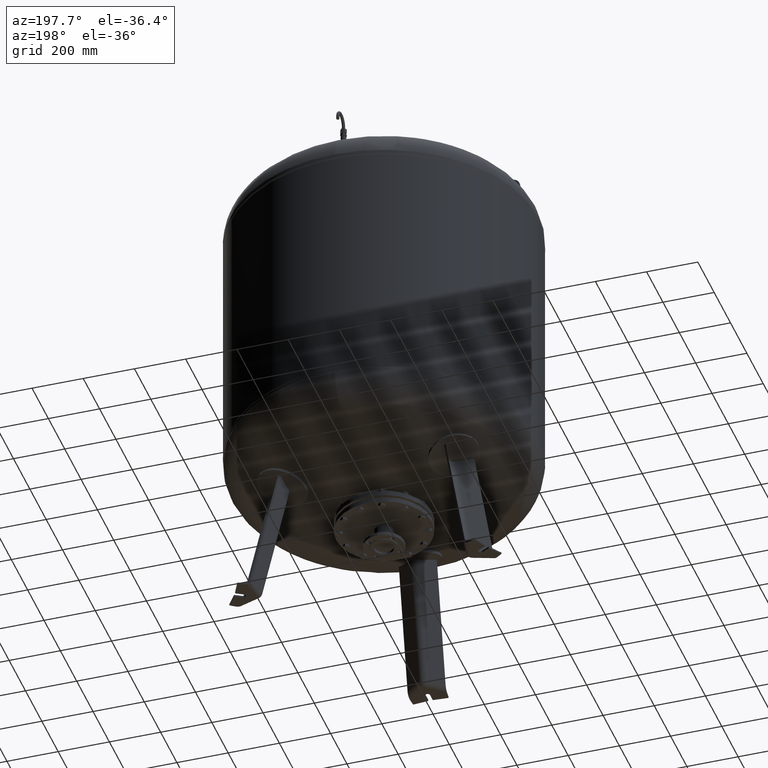
[diagram: clean part render]
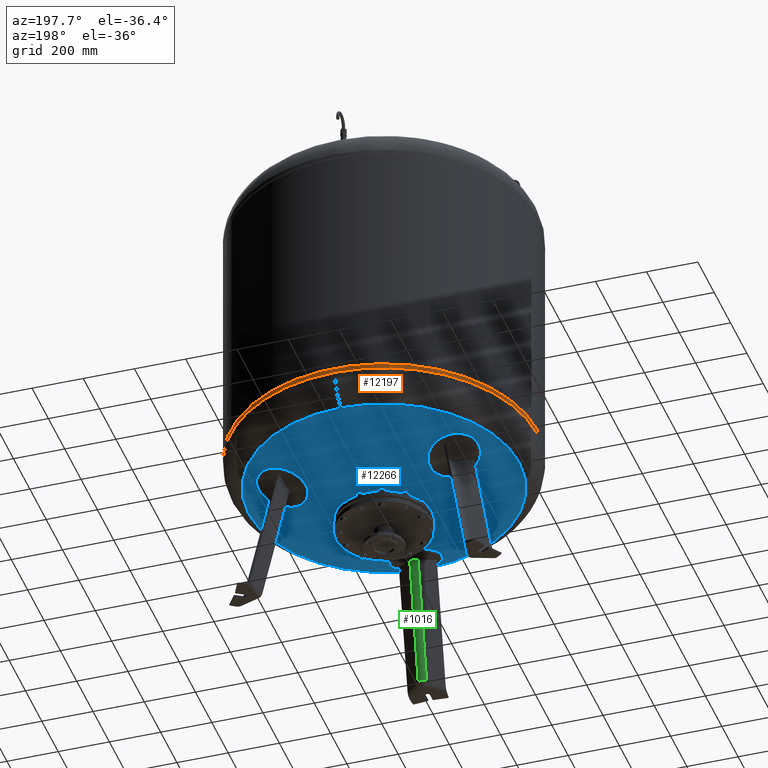
[diagram: same view with three faces highlighted in distinct colors, each labeled with its STEP entity id]
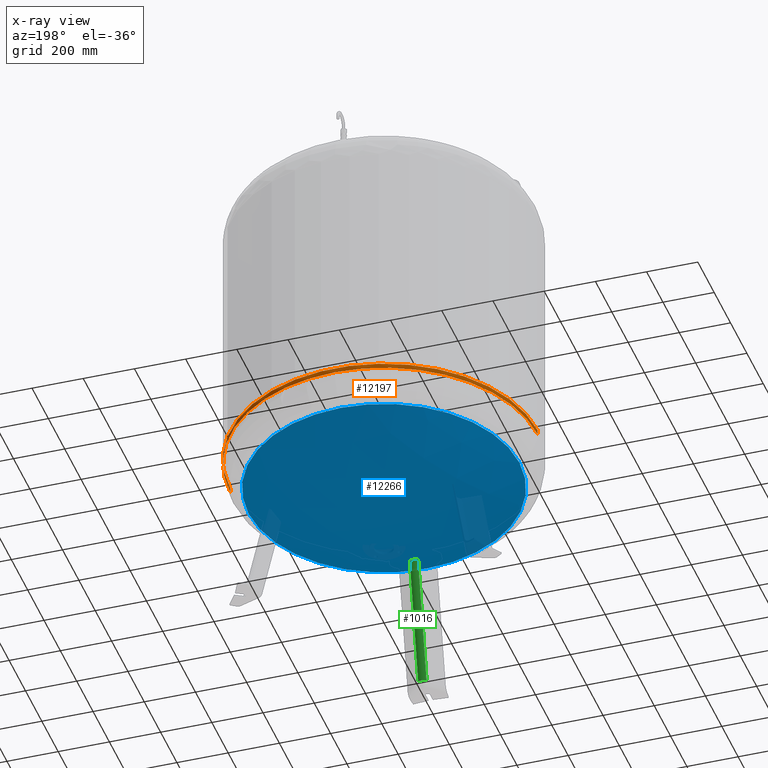
[diagram: x-ray of the same camera — body ghosted, the three highlighted faces saturated]
A machine part, auxiliary view with three faces highlighted in distinct colors.
The next image is the same camera in x-ray (body ghosted, the three faces saturated) — at least one of them is partly hidden behind the body in this view.
Their STEP definitions:

[orange] entity #12197 — the highlighted cylindrical surface (partial cylindrical patch) has radius 600 mm, axis along (-0, -0, 1).
#12147=CARTESIAN_POINT('',(-3.693994E-014,-4.510566E-014,705.543771283136150));
#12148=DIRECTION('',(-1.504413E-016,-1.836970E-016,1.0));
#12149=DIRECTION('',(-1.0,0.0,0.0));
#12150=AXIS2_PLACEMENT_3D('',#12147,#12148,#12149);
#12151=CYLINDRICAL_SURFACE('',#12150,599.999999999999890);
#12152=CARTESIAN_POINT('',(-600.000000000000110,-4.684274E-014,715.0));
#12153=VERTEX_POINT('',#12152);
#12154=CARTESIAN_POINT('',(-600.0,-4.336858E-014,696.087542566272190));
#12155=VERTEX_POINT('',#12154);
#12156=CARTESIAN_POINT('',(-600.000000000000110,-4.684274E-014,715.0));
#12157=DIRECTION('',(0.0,0.0,-1.0));
#12158=VECTOR('',#12157,18.912457433727809);
#12159=LINE('',#12156,#12158);
#12160=EDGE_CURVE('',#12153,#12155,#12159,.T.);
#12161=ORIENTED_EDGE('',*,*,#12160,.F.);
#12162=CARTESIAN_POINT('',(599.999999999999890,2.663364E-014,715.000000000000110));
#12163=VERTEX_POINT('',#12162);
#12164=CARTESIAN_POINT('',(-3.836254E-014,-4.684274E-014,715.0));
#12165=DIRECTION('',(0.0,0.0,1.0));
#12166=DIRECTION('',(-1.0,0.0,0.0));
#12167=AXIS2_PLACEMENT_3D('',#12164,#12165,#12166);
#12168=CIRCLE('',#12167,600.0);
#12169=EDGE_CURVE('',#12163,#12153,#12168,.T.);
#12170=ORIENTED_EDGE('',*,*,#12169,.F.);
#12171=CARTESIAN_POINT('',(599.999999999999890,3.010780E-014,696.087542566272300));
#12172=VERTEX_POINT('',#12171);
#12173=CARTESIAN_POINT('',(599.999999999999890,2.663364E-014,715.000000000000110));
#12174=DIRECTION('',(0.0,0.0,-1.0));
#12175=VECTOR('',#12174,18.912457433727809);
#12176=LINE('',#12173,#12175);
#12177=EDGE_CURVE('',#12163,#12172,#12176,.T.);
#12178=ORIENTED_EDGE('',*,*,#12177,.T.);
#12179=CARTESIAN_POINT('',(-1.445307E-013,600.0,696.087542566272420));
#12180=VERTEX_POINT('',#12179);
#12181=CARTESIAN_POINT('',(-3.551733E-014,-4.336858E-014,696.087542566272300));
#12182=DIRECTION('',(0.0,0.0,1.0));
#12183=DIRECTION('',(-1.0,0.0,0.0));
#12184=AXIS2_PLACEMENT_3D('',#12181,#12182,#12183);
#12185=CIRCLE('',#12184,600.0);
#12186=EDGE_CURVE('',#12172,#12180,#12185,.T.);
#12187=ORIENTED_EDGE('',*,*,#12186,.T.);
#12188=CARTESIAN_POINT('',(-3.551733E-014,-4.336858E-014,696.087542566272300));
#12189=DIRECTION('',(0.0,0.0,1.0));
#12190=DIRECTION('',(-1.0,0.0,0.0));
#12191=AXIS2_PLACEMENT_3D('',#12188,#12189,#12190);
#12192=CIRCLE('',#12191,600.0);
#12193=EDGE_CURVE('',#12180,#12155,#12192,.T.);
#12194=ORIENTED_EDGE('',*,*,#12193,.T.);
#12195=EDGE_LOOP('',(#12161,#12170,#12178,#12187,#12194));
#12196=FACE_OUTER_BOUND('',#12195,.T.);
#12197=ADVANCED_FACE('',(#12196),#12151,.T.);

[blue] entity #12266 — the highlighted spherical surface has radius 1207 mm.
#12205=CARTESIAN_POINT('',(-5.387807E-014,-528.621296296296240,581.915429516194880));
#12206=VERTEX_POINT('',#12205);
#12222=CARTESIAN_POINT('',(-1.186134E-013,528.621296296296240,581.915429516195100));
#12223=VERTEX_POINT('',#12222);
#12231=CARTESIAN_POINT('',(-528.621296296296240,-2.239550E-014,581.915429516194990));
#12232=VERTEX_POINT('',#12231);
#12233=CARTESIAN_POINT('',(-1.834112E-014,-2.239550E-014,581.915429516194990));
#12234=DIRECTION('',(0.0,0.0,1.0));
#12235=DIRECTION('',(-1.0,0.0,0.0));
#12236=AXIS2_PLACEMENT_3D('',#12233,#12234,#12235);
#12237=CIRCLE('',#12236,528.621296296296240);
#12238=EDGE_CURVE('',#12223,#12232,#12237,.T.);
#12240=CARTESIAN_POINT('',(-1.834112E-014,-2.239550E-014,581.915429516194990));
#12241=DIRECTION('',(0.0,0.0,1.0));
#12242=DIRECTION('',(-1.0,0.0,0.0));
#12243=AXIS2_PLACEMENT_3D('',#12240,#12241,#12242);
#12244=CIRCLE('',#12243,528.621296296296240);
#12245=EDGE_CURVE('',#12232,#12206,#12244,.T.);
#12250=CARTESIAN_POINT('',(-2.715353E-013,-2.217223E-013,1667.0));
#12251=DIRECTION('',(0.0,-1.0,0.0));
#12252=DIRECTION('',(1.0,0.0,0.0));
#12253=AXIS2_PLACEMENT_3D('',#12250,#12251,#12252);
#12254=SPHERICAL_SURFACE('',#12253,1207.000000000000200);
#12255=ORIENTED_EDGE('',*,*,#12245,.F.);
#12256=ORIENTED_EDGE('',*,*,#12238,.F.);
#12257=CARTESIAN_POINT('',(-1.834112E-014,-2.239550E-014,581.915429516194990));
#12258=DIRECTION('',(0.0,0.0,1.0));
#12259=DIRECTION('',(-1.0,0.0,0.0));
#12260=AXIS2_PLACEMENT_3D('',#12257,#12258,#12259);
#12261=CIRCLE('',#12260,528.621296296296240);
#12262=EDGE_CURVE('',#12206,#12223,#12261,.T.);
#12263=ORIENTED_EDGE('',*,*,#12262,.F.);
#12264=EDGE_LOOP('',(#12255,#12256,#12263));
#12265=FACE_OUTER_BOUND('',#12264,.T.);
#12266=ADVANCED_FACE('',(#12265),#12254,.T.);

[green] entity #1016 — the highlighted cylindrical surface (edge-blend (fillet) strip) has radius 25 mm, axis along (0, 0.2079, 0.9781).
#237=CARTESIAN_POINT('',(3.011497E-014,-463.694895977767430,19.802207729555999));
#238=VERTEX_POINT('',#237);
#248=CARTESIAN_POINT('',(16.136450826554551,-469.470961811045530,21.029948423057281));
#249=VERTEX_POINT('',#248);
#250=CARTESIAN_POINT('',(1.064933E-014,-488.148585996112560,24.999999999999993));
#251=DIRECTION('',(-1.655020E-016,-0.207911690817760,-0.978147600733806));
#252=DIRECTION('',(3.716286E-016,0.978147600733806,-0.207911690817760));
#253=AXIS2_PLACEMENT_3D('',#250,#251,#252);
#254=CIRCLE('',#253,24.999999999999996);
#255=EDGE_CURVE('',#238,#249,#254,.T.);
#332=CARTESIAN_POINT('',(-16.136450826554526,-469.470961811045530,21.029948423057292));
#333=VERTEX_POINT('',#332);
#380=CARTESIAN_POINT('',(1.064933E-014,-488.148585996112560,24.999999999999993));
#381=DIRECTION('',(-1.655020E-016,-0.207911690817760,-0.978147600733806));
#382=DIRECTION('',(3.716286E-016,0.978147600733806,-0.207911690817760));
#383=AXIS2_PLACEMENT_3D('',#380,#381,#382);
#384=CIRCLE('',#383,24.999999999999996);
#385=EDGE_CURVE('',#333,#238,#384,.T.);
#782=CARTESIAN_POINT('',(16.136450826554654,-366.399566169852280,505.942739782580020));
#783=VERTEX_POINT('',#782);
#793=CARTESIAN_POINT('',(-16.136450826554444,-366.398456764061390,505.947959126467590));
#794=VERTEX_POINT('',#793);
#795=CARTESIAN_POINT('',(-16.136450826554444,-366.398456764061390,505.947959126467590));
#796=CARTESIAN_POINT('',(-15.737400566579936,-366.076748518013970,505.839519935654040));
#797=CARTESIAN_POINT('',(-15.327147909001727,-365.766480344501820,505.734934896781850));
#798=CARTESIAN_POINT('',(-14.046721065585743,-364.859207342083210,505.429103824092690));
#799=CARTESIAN_POINT('',(-13.143904252568687,-364.301561156435750,505.241116411709530));
#800=CARTESIAN_POINT('',(-11.271425572263219,-363.302030248417340,504.904132145277800));
#801=CARTESIAN_POINT('',(-10.300484546888351,-362.859462575826110,504.754905007621570));
#802=CARTESIAN_POINT('',(-8.309953011693755,-362.097968578637620,504.498091049258280));
#803=CARTESIAN_POINT('',(-7.290360884908889,-361.779046057881940,504.390505482463710));
#804=CARTESIAN_POINT('',(-5.225144980184176,-361.269712235438310,504.218613051497190));
#805=CARTESIAN_POINT('',(-4.179354266446703,-361.079270589673680,504.154295924989920));
#806=CARTESIAN_POINT('',(-2.085342238614453,-360.827043975141580,504.068989992027010));
#807=CARTESIAN_POINT('',(-1.037118907308644,-360.765274041493630,504.048006248182790));
#808=CARTESIAN_POINT('',(1.038678789270924,-360.765345349864620,504.047670768673360));
#809=CARTESIAN_POINT('',(2.088434223304574,-360.827373189681400,504.068378031877960));
#810=CARTESIAN_POINT('',(4.185395383273503,-361.080473335127180,504.153252291123410));
#811=CARTESIAN_POINT('',(5.232603134368776,-361.271530564476900,504.217414209798390));
#812=CARTESIAN_POINT('',(7.300480784593006,-361.782427323971090,504.389117041742050));
#813=CARTESIAN_POINT('',(8.321318171703672,-362.102297385734120,504.496668222473030));
#814=CARTESIAN_POINT('',(10.314115908884709,-362.865984454112660,504.753530564510750));
#815=CARTESIAN_POINT('',(11.286077877784916,-363.309797658262600,504.902840471794430));
#816=CARTESIAN_POINT('',(13.160327133807668,-364.312075777572770,505.240100544597230));
#817=CARTESIAN_POINT('',(14.063897342508563,-364.871226890810190,505.428281643566950));
#818=CARTESIAN_POINT('',(15.338706105894477,-365.776279989160680,505.732921779836370));
#819=CARTESIAN_POINT('',(15.743019211407953,-366.082360497986430,505.835954876961470));
#820=CARTESIAN_POINT('',(16.136450826554654,-366.399566169852280,505.942739782580020));
#821=B_SPLINE_CURVE_WITH_KNOTS('',3,(#795,#796,#797,#798,#799,#800,#801,#802,#803,#804,#805,#806,#807,#808,#809,#810,#811,#812,#813,#814,#815,#816,#817,#818,#819,#820),.UNSPECIFIED.,.F.,.U.,(4,2,2,2,2,2,2,2,2,2,2,2,4),(32.794903054826207,34.316215825106944,37.427572589502290,40.538929353897636,43.650286118292982,46.761642882688328,49.872999647083674,52.989036057429090,56.105072467774505,59.221108878119921,62.337145288465337,65.453181698810752,66.953203267256470),.UNSPECIFIED.);
#822=EDGE_CURVE('',#794,#783,#821,.T.);
#988=CARTESIAN_POINT('',(-16.136450826554526,-469.470961811045530,21.029948423057292));
#989=DIRECTION('',(1.648254E-016,0.207911690817760,0.978147600733806));
#990=VECTOR('',#989,495.751367523291150);
#991=LINE('',#988,#990);
#992=EDGE_CURVE('',#333,#794,#991,.T.);
#999=CARTESIAN_POINT('',(9.071145E-015,-497.964238536233840,-21.179014484433068));
#1000=DIRECTION('',(1.655020E-016,0.207911690817760,0.978147600733806));
#1001=DIRECTION('',(3.716286E-016,0.978147600733806,-0.207911690817760));
#1002=AXIS2_PLACEMENT_3D('',#999,#1000,#1001);
#1003=CYLINDRICAL_SURFACE('',#1002,25.0);
#1004=ORIENTED_EDGE('',*,*,#822,.T.);
#1005=CARTESIAN_POINT('',(16.136450826554654,-366.399566169852280,505.942739782580020));
#1006=DIRECTION('',(-2.078256E-016,-0.207911690817760,-0.978147600733806));
#1007=VECTOR('',#1006,495.746031576156330);
#1008=LINE('',#1005,#1007);
#1009=EDGE_CURVE('',#783,#249,#1008,.T.);
#1010=ORIENTED_EDGE('',*,*,#1009,.T.);
#1011=ORIENTED_EDGE('',*,*,#255,.F.);
#1012=ORIENTED_EDGE('',*,*,#385,.F.);
#1013=ORIENTED_EDGE('',*,*,#992,.T.);
#1014=EDGE_LOOP('',(#1004,#1010,#1011,#1012,#1013));
#1015=FACE_OUTER_BOUND('',#1014,.T.);
#1016=ADVANCED_FACE('',(#1015),#1003,.T.);